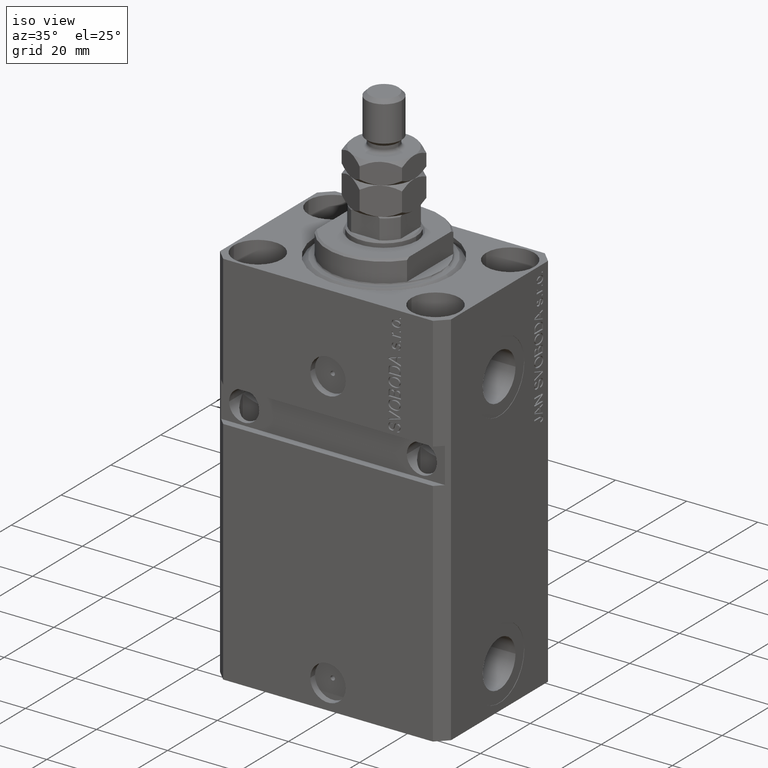
[diagram: clean part render]
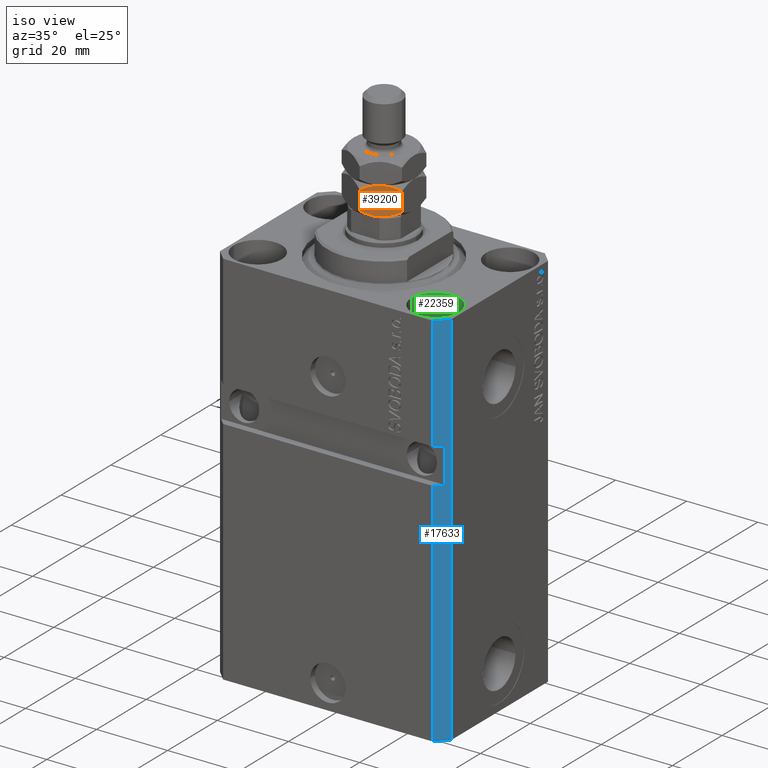
[diagram: same view with three faces highlighted in distinct colors, each labeled with its STEP entity id]
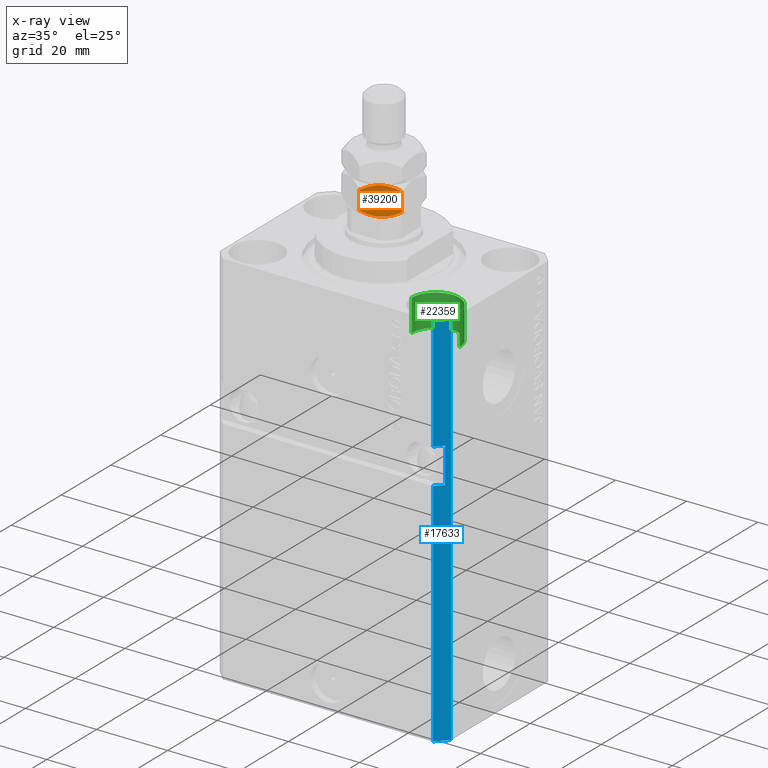
[diagram: x-ray of the same camera — body ghosted, the three highlighted faces saturated]
A machine part, iso view with three faces highlighted in distinct colors.
The next image is the same camera in x-ray (body ghosted, the three faces saturated) — at least one of them is partly hidden behind the body in this view.
Their STEP definitions:

[orange] entity #39200 — the highlighted planar face has unit normal (-0.5, 0.866, 0).
#1298 = CARTESIAN_POINT ( 'NONE',  ( 4.622229978650556070, -7.146308853793384763, -1.291725244562808017E-15 ) ) ;
#1618 = EDGE_CURVE ( 'NONE', #36390, #26012, #25965, .T. ) ;
#2045 = B_SPLINE_CURVE_WITH_KNOTS ( 'NONE', 3,
 ( #38709, #6479, #10927, #17770, #46420, #42907 ),
 .UNSPECIFIED., .F., .F.,
 ( 4, 2, 4 ),
 ( 0.005087299150080232951, 0.007613005268011856577, 0.01013871138594348020 ),
 .UNSPECIFIED. ) ;
#2893 = FACE_OUTER_BOUND ( 'NONE', #39038, .T. ) ;
#3130 = CARTESIAN_POINT ( 'NONE',  ( -9.757819552369539906E-16, -9.814954576223637872, 8.000000000000000000 ) ) ;
#4316 = CARTESIAN_POINT ( 'NONE',  ( -1.010883460254179403E-15, -9.814954576223637872, 1.314954576223630323 ) ) ;
#4545 = AXIS2_PLACEMENT_3D ( 'NONE', #3130, #10202, #24563 ) ;
#4969 = CARTESIAN_POINT ( 'NONE',  ( 8.500000000000001776, -4.907477288111817160, 1.314954576223629878 ) ) ;
#5067 = CARTESIAN_POINT ( 'NONE',  ( 2.784079206026082609, -8.207565697179241226, 0.1305202873832139177 ) ) ;
#5540 = CARTESIAN_POINT ( 'NONE',  ( 6.092930036521920556, -6.297199779484154547, 0.2536240893246553552 ) ) ;
#5758 = ORIENTED_EDGE ( 'NONE', *, *, #16312, .F. ) ;
#6380 = ORIENTED_EDGE ( 'NONE', *, *, #25495, .T. ) ;
#6479 = CARTESIAN_POINT ( 'NONE',  ( 4.989245346831671313, -6.934412432177284202, 8.000000000000001776 ) ) ;
#7532 = B_SPLINE_CURVE_WITH_KNOTS ( 'NONE', 3,
 ( #45032, #37780, #9070, #5540, #8380, #19904, #1298, #9303 ),
 .UNSPECIFIED., .F., .F.,
 ( 4, 2, 2, 4 ),
 ( 2.544313836654547822E-07, 0.002543776790731953636, 0.003815537970406099148, 0.005087299150080244227 ),
 .UNSPECIFIED. ) ;
#8250 = VERTEX_POINT ( 'NONE', #28077 ) ;
#8380 = CARTESIAN_POINT ( 'NONE',  ( 5.733718739115172269, -6.504590518737895621, 0.1608217079418340634 ) ) ;
#8467 = CARTESIAN_POINT ( 'NONE',  ( 3.499970675361007366, -7.794245564648166535, 7.966263250401633300 ) ) ;
#9062 = CARTESIAN_POINT ( 'NONE',  ( 0.6656893889372494932, -9.430618628324040742, 0.9306186283239298307 ) ) ;
#9070 = CARTESIAN_POINT ( 'NONE',  ( 7.151994807070145121, -5.685748449118888104, 0.6032092124201289263 ) ) ;
#9303 = CARTESIAN_POINT ( 'NONE',  ( 4.249999999999997335, -7.361215932167732845, 0.000000000000000000 ) ) ;
#9359 = ORIENTED_EDGE ( 'NONE', *, *, #1618, .F. ) ;
#9975 = B_SPLINE_CURVE_WITH_KNOTS ( 'NONE', 3,
 ( #15915, #30267, #5067, #19429, #9062, #15680 ),
 .UNSPECIFIED., .F., .F.,
 ( 4, 2, 4 ),
 ( 0.005087299150080244227, 0.007613005268011863516, 0.01013871138594348367 ),
 .UNSPECIFIED. ) ;
#10202 = DIRECTION ( 'NONE',  ( -0.4999999999999995559, 0.8660254037844389297, 0.000000000000000000 ) ) ;
#10927 = CARTESIAN_POINT ( 'NONE',  ( 5.715920793973914726, -6.514866167156222687, 7.869479712616787026 ) ) ;
#11613 = CARTESIAN_POINT ( 'NONE',  ( 8.500000000000001776, -4.907477288111821601, 8.000000000000000000 ) ) ;
#11764 = CARTESIAN_POINT ( 'NONE',  ( 4.249999999999994671, -7.361215932167728404, 8.000000000000000000 ) ) ;
#14598 = CARTESIAN_POINT ( 'NONE',  ( 2.407069963478076335, -8.425232084851307590, 7.746375910675348031 ) ) ;
#15680 = CARTESIAN_POINT ( 'NONE',  ( -1.010883460254179403E-15, -9.814954576223637872, 1.314954576223630323 ) ) ;
#15753 = DIRECTION ( 'NONE',  ( -0.000000000000000000, -0.000000000000000000, -1.000000000000000000 ) ) ;
#15915 = CARTESIAN_POINT ( 'NONE',  ( 4.249999999999997335, -7.361215932167732845, 0.000000000000000000 ) ) ;
#16312 = EDGE_CURVE ( 'NONE', #18157, #36390, #2045, .T. ) ;
#16412 = VERTEX_POINT ( 'NONE', #4316 ) ;
#17272 = PLANE ( 'NONE',  #4545 ) ;
#17655 = EDGE_CURVE ( 'NONE', #32414, #18157, #19985, .T. ) ;
#17770 = CARTESIAN_POINT ( 'NONE',  ( 7.149107353189445568, -5.687415521394182605, 7.399061587263878970 ) ) ;
#18157 = VERTEX_POINT ( 'NONE', #42920 ) ;
#18356 = CARTESIAN_POINT ( 'NONE',  ( 0.6664608216042839928, -9.430173241466070166, 7.069826758533944933 ) ) ;
#18802 = LINE ( 'NONE', #40890, #20990 ) ;
#19140 = DIRECTION ( 'NONE',  ( -0.000000000000000000, -0.000000000000000000, -1.000000000000000000 ) ) ;
#19429 = CARTESIAN_POINT ( 'NONE',  ( 1.350892646810552433, -9.035016342941277756, 0.6009384127361203642 ) ) ;
#19904 = CARTESIAN_POINT ( 'NONE',  ( 5.000029324638989081, -6.928186299687297378, 0.03373674959836757414 ) ) ;
#19985 = B_SPLINE_CURVE_WITH_KNOTS ( 'NONE', 3,
 ( #43955, #18356, #36240, #14598, #22826, #8467, #28946, #11764 ),
 .UNSPECIFIED., .F., .F.,
 ( 4, 2, 2, 4 ),
 ( 2.544313836662128767E-07, 0.002543776790731947998, 0.003815537970406090475, 0.005087299150080232951 ),
 .UNSPECIFIED. ) ;
#20990 = VECTOR ( 'NONE', #15753, 1000.000000000000000 ) ;
#22826 = CARTESIAN_POINT ( 'NONE',  ( 2.766281260884825066, -8.217841345597570069, 7.839178292058168296 ) ) ;
#24563 = DIRECTION ( 'NONE',  ( -0.8660254037844389297, -0.4999999999999995559, 0.000000000000000000 ) ) ;
#25495 = EDGE_CURVE ( 'NONE', #32414, #16412, #18802, .T. ) ;
#25965 = LINE ( 'NONE', #11613, #39776 ) ;
#26012 = VERTEX_POINT ( 'NONE', #4969 ) ;
#28077 = CARTESIAN_POINT ( 'NONE',  ( 4.249999999999997335, -7.361215932167732845, 0.000000000000000000 ) ) ;
#28946 = CARTESIAN_POINT ( 'NONE',  ( 3.877770021349439045, -7.576123010542081815, 8.000000000000003553 ) ) ;
#30267 = CARTESIAN_POINT ( 'NONE',  ( 3.510754653168322914, -7.788019432158174382, -1.295960409299079124E-15 ) ) ;
#32111 = ORIENTED_EDGE ( 'NONE', *, *, #17655, .F. ) ;
#32345 = CARTESIAN_POINT ( 'NONE',  ( 8.500000000000001776, -4.907477288111821601, 6.685045423776368345 ) ) ;
#32414 = VERTEX_POINT ( 'NONE', #36895 ) ;
#36240 = CARTESIAN_POINT ( 'NONE',  ( 1.348005192929855101, -9.036683415216574033, 7.396790787579876181 ) ) ;
#36390 = VERTEX_POINT ( 'NONE', #32345 ) ;
#36895 = CARTESIAN_POINT ( 'NONE',  ( -7.581970720220202129E-16, -9.814954576223637872, 6.685045423776371010 ) ) ;
#37780 = CARTESIAN_POINT ( 'NONE',  ( 7.833539178395718672, -5.292258622869395523, 0.9301732414660633941 ) ) ;
#38709 = CARTESIAN_POINT ( 'NONE',  ( 4.249999999999994671, -7.361215932167728404, 8.000000000000000000 ) ) ;
#39038 = EDGE_LOOP ( 'NONE', ( #45263, #9359, #5758, #32111, #6380, #39203 ) ) ;
#39200 = ADVANCED_FACE ( 'NONE', ( #2893 ), #17272, .F. ) ;
#39203 = ORIENTED_EDGE ( 'NONE', *, *, #43413, .F. ) ;
#39776 = VECTOR ( 'NONE', #19140, 1000.000000000000000 ) ;
#40890 = CARTESIAN_POINT ( 'NONE',  ( -9.757819552369539906E-16, -9.814954576223637872, 8.000000000000000000 ) ) ;
#42907 = CARTESIAN_POINT ( 'NONE',  ( 8.500000000000001776, -4.907477288111821601, 6.685045423776368345 ) ) ;
#42920 = CARTESIAN_POINT ( 'NONE',  ( 4.249999999999994671, -7.361215932167728404, 8.000000000000000000 ) ) ;
#43413 = EDGE_CURVE ( 'NONE', #8250, #16412, #9975, .T. ) ;
#43955 = CARTESIAN_POINT ( 'NONE',  ( -7.581970720220202129E-16, -9.814954576223637872, 6.685045423776371010 ) ) ;
#44369 = EDGE_CURVE ( 'NONE', #26012, #8250, #7532, .T. ) ;
#45032 = CARTESIAN_POINT ( 'NONE',  ( 8.500000000000001776, -4.907477288111817160, 1.314954576223629878 ) ) ;
#45263 = ORIENTED_EDGE ( 'NONE', *, *, #44369, .F. ) ;
#46420 = CARTESIAN_POINT ( 'NONE',  ( 7.834310611062749174, -5.291813236011422283, 7.069381371676068504 ) ) ;

[blue] entity #17633 — the highlighted planar face has unit normal (0.7071, -0.7071, 0).
#497 = LINE ( 'NONE', #14891, #20865 ) ;
#1564 = ORIENTED_EDGE ( 'NONE', *, *, #40134, .F. ) ;
#2577 = ORIENTED_EDGE ( 'NONE', *, *, #23808, .F. ) ;
#4188 = ORIENTED_EDGE ( 'NONE', *, *, #41185, .T. ) ;
#4453 = CARTESIAN_POINT ( 'NONE',  ( 29.49999999999650413, -22.49999999999949196, -107.0000000000000000 ) ) ;
#5436 = CARTESIAN_POINT ( 'NONE',  ( 29.49999999999650413, -22.49999999999949196, 0.000000000000000000 ) ) ;
#7124 = CARTESIAN_POINT ( 'NONE',  ( 29.49999999999650768, -22.49999999999948841, -32.00000000000001421 ) ) ;
#7412 = CARTESIAN_POINT ( 'NONE',  ( 31.49999999999651124, -20.49999999999949551, -107.0000000000000000 ) ) ;
#8296 = CARTESIAN_POINT ( 'NONE',  ( 29.49999999999650058, -22.49999999999949551, -41.99999999999999289 ) ) ;
#8495 = ORIENTED_EDGE ( 'NONE', *, *, #24961, .F. ) ;
#8512 = EDGE_CURVE ( 'NONE', #17751, #14821, #37430, .T. ) ;
#8814 = VERTEX_POINT ( 'NONE', #29164 ) ;
#8821 = VERTEX_POINT ( 'NONE', #12448 ) ;
#10515 = ORIENTED_EDGE ( 'NONE', *, *, #8512, .F. ) ;
#11831 = LINE ( 'NONE', #8296, #21649 ) ;
#12448 = CARTESIAN_POINT ( 'NONE',  ( 29.49999999999650058, -22.49999999999949196, -41.99999999999998579 ) ) ;
#13280 = DIRECTION ( 'NONE',  ( 0.000000000000000000, 0.000000000000000000, 1.000000000000000000 ) ) ;
#13350 = VERTEX_POINT ( 'NONE', #21634 ) ;
#13426 = DIRECTION ( 'NONE',  ( 0.7071067811865483499, 0.7071067811865466846, 0.000000000000000000 ) ) ;
#13479 = DIRECTION ( 'NONE',  ( 0.000000000000000000, 0.000000000000000000, 1.000000000000000000 ) ) ;
#13519 = LINE ( 'NONE', #7124, #36862 ) ;
#14821 = VERTEX_POINT ( 'NONE', #32131 ) ;
#14830 = DIRECTION ( 'NONE',  ( 0.7071067811865466846, -0.7071067811865483499, 0.000000000000000000 ) ) ;
#14891 = CARTESIAN_POINT ( 'NONE',  ( 29.49999999999650413, -22.49999999999949196, -107.0000000000000000 ) ) ;
#15441 = DIRECTION ( 'NONE',  ( 0.000000000000000000, 0.000000000000000000, -1.000000000000000000 ) ) ;
#16004 = EDGE_CURVE ( 'NONE', #45773, #14821, #26940, .T. ) ;
#17633 = ADVANCED_FACE ( 'NONE', ( #46092 ), #29417, .T. ) ;
#17751 = VERTEX_POINT ( 'NONE', #44871 ) ;
#17784 = DIRECTION ( 'NONE',  ( 0.7071067811865483499, 0.7071067811865466846, 0.000000000000000000 ) ) ;
#18489 = EDGE_CURVE ( 'NONE', #8814, #17751, #497, .T. ) ;
#20865 = VECTOR ( 'NONE', #29240, 1000.000000000000000 ) ;
#21429 = VECTOR ( 'NONE', #13426, 1000.000000000000000 ) ;
#21487 = DIRECTION ( 'NONE',  ( -0.7071067811865483499, -0.7071067811865466846, 7.548521435980509068E-17 ) ) ;
#21634 = CARTESIAN_POINT ( 'NONE',  ( 31.49999999999650413, -20.49999999999949196, -41.99999999999998579 ) ) ;
#21649 = VECTOR ( 'NONE', #39808, 1000.000000000000000 ) ;
#23808 = EDGE_CURVE ( 'NONE', #8821, #13350, #11831, .T. ) ;
#24961 = EDGE_CURVE ( 'NONE', #43878, #8821, #45661, .T. ) ;
#25288 = ORIENTED_EDGE ( 'NONE', *, *, #30448, .T. ) ;
#26082 = ORIENTED_EDGE ( 'NONE', *, *, #16004, .T. ) ;
#26445 = CARTESIAN_POINT ( 'NONE',  ( 31.49999999999651124, -20.49999999999949196, -32.00000000000000711 ) ) ;
#26876 = AXIS2_PLACEMENT_3D ( 'NONE', #4453, #14830, #43259 ) ;
#26940 = LINE ( 'NONE', #34929, #27584 ) ;
#27584 = VECTOR ( 'NONE', #13280, 1000.000000000000000 ) ;
#28834 = LINE ( 'NONE', #32371, #42159 ) ;
#29164 = CARTESIAN_POINT ( 'NONE',  ( 29.49999999999650413, -22.49999999999949196, -32.00000000000000711 ) ) ;
#29240 = DIRECTION ( 'NONE',  ( 0.000000000000000000, 0.000000000000000000, 1.000000000000000000 ) ) ;
#29241 = EDGE_LOOP ( 'NONE', ( #2577, #8495, #25288, #26082, #10515, #31066, #1564, #4188 ) ) ;
#29417 = PLANE ( 'NONE',  #26876 ) ;
#29469 = CARTESIAN_POINT ( 'NONE',  ( 32.49999999999651124, -19.49999999999949196, -107.0000000000000000 ) ) ;
#30448 = EDGE_CURVE ( 'NONE', #43878, #45773, #28834, .T. ) ;
#31066 = ORIENTED_EDGE ( 'NONE', *, *, #18489, .F. ) ;
#31131 = CARTESIAN_POINT ( 'NONE',  ( 29.49999999999650413, -22.49999999999949196, -107.0000000000000000 ) ) ;
#32131 = CARTESIAN_POINT ( 'NONE',  ( 32.49999999999651124, -19.49999999999949196, 0.000000000000000000 ) ) ;
#32371 = CARTESIAN_POINT ( 'NONE',  ( 29.49999999999650413, -22.49999999999949196, -107.0000000000000000 ) ) ;
#34891 = CARTESIAN_POINT ( 'NONE',  ( 29.49999999999650413, -22.49999999999949196, -107.0000000000000000 ) ) ;
#34929 = CARTESIAN_POINT ( 'NONE',  ( 32.49999999999651124, -19.49999999999949196, -107.0000000000000000 ) ) ;
#36862 = VECTOR ( 'NONE', #21487, 1000.000000000000000 ) ;
#37430 = LINE ( 'NONE', #5436, #21429 ) ;
#39635 = LINE ( 'NONE', #7412, #42910 ) ;
#39699 = VECTOR ( 'NONE', #13479, 1000.000000000000000 ) ;
#39808 = DIRECTION ( 'NONE',  ( 0.7071067811865483499, 0.7071067811865466846, 7.548521435980509068E-17 ) ) ;
#40134 = EDGE_CURVE ( 'NONE', #42369, #8814, #13519, .T. ) ;
#41185 = EDGE_CURVE ( 'NONE', #42369, #13350, #39635, .T. ) ;
#42159 = VECTOR ( 'NONE', #17784, 1000.000000000000000 ) ;
#42369 = VERTEX_POINT ( 'NONE', #26445 ) ;
#42910 = VECTOR ( 'NONE', #15441, 1000.000000000000000 ) ;
#43259 = DIRECTION ( 'NONE',  ( 0.7071067811865483499, 0.7071067811865466846, 0.000000000000000000 ) ) ;
#43878 = VERTEX_POINT ( 'NONE', #34891 ) ;
#44871 = CARTESIAN_POINT ( 'NONE',  ( 29.49999999999650413, -22.49999999999949196, 0.000000000000000000 ) ) ;
#45661 = LINE ( 'NONE', #31131, #39699 ) ;
#45773 = VERTEX_POINT ( 'NONE', #29469 ) ;
#46092 = FACE_OUTER_BOUND ( 'NONE', #29241, .T. ) ;

[green] entity #22359 — the highlighted cylindrical surface (edge-blend (fillet) strip) has radius 6.75 mm, axis along (0, 0, 1).
#10 = ORIENTED_EDGE ( 'NONE', *, *, #32581, .T. ) ;
#1377 = ORIENTED_EDGE ( 'NONE', *, *, #40256, .F. ) ;
#1454 = AXIS2_PLACEMENT_3D ( 'NONE', #5892, #6363, #10992 ) ;
#2310 = CARTESIAN_POINT ( 'NONE',  ( 31.74999999997746869, -15.00000000000000000, -9.000000000000000000 ) ) ;
#2822 = CYLINDRICAL_SURFACE ( 'NONE', #1454, 6.749999999977465137 ) ;
#3862 = DIRECTION ( 'NONE',  ( 1.000000000000000000, 0.000000000000000000, 0.000000000000000000 ) ) ;
#5419 = EDGE_CURVE ( 'NONE', #30902, #12302, #34570, .T. ) ;
#5679 = CARTESIAN_POINT ( 'NONE',  ( 31.74999999997746869, -15.00000000000000000, -9.000000000000000000 ) ) ;
#5892 = CARTESIAN_POINT ( 'NONE',  ( 25.00000000000000355, -15.00000000000000000, -9.000000000000000000 ) ) ;
#6363 = DIRECTION ( 'NONE',  ( -0.000000000000000000, -0.000000000000000000, 1.000000000000000000 ) ) ;
#8763 = DIRECTION ( 'NONE',  ( -0.000000000000000000, -0.000000000000000000, 1.000000000000000000 ) ) ;
#9288 = EDGE_LOOP ( 'NONE', ( #1377, #14983, #33964, #10 ) ) ;
#10194 = EDGE_CURVE ( 'NONE', #30902, #43989, #19894, .T. ) ;
#10992 = DIRECTION ( 'NONE',  ( 1.000000000000000000, 0.000000000000000000, 0.000000000000000000 ) ) ;
#12302 = VERTEX_POINT ( 'NONE', #22339 ) ;
#14983 = ORIENTED_EDGE ( 'NONE', *, *, #10194, .F. ) ;
#15427 = CARTESIAN_POINT ( 'NONE',  ( 25.00000000000000355, -15.00000000000000000, -9.000000000000000000 ) ) ;
#16691 = AXIS2_PLACEMENT_3D ( 'NONE', #39199, #18031, #42941 ) ;
#18031 = DIRECTION ( 'NONE',  ( 0.000000000000000000, 0.000000000000000000, 1.000000000000000000 ) ) ;
#18061 = FACE_OUTER_BOUND ( 'NONE', #9288, .T. ) ;
#19894 = CIRCLE ( 'NONE', #30415, 6.749999999977465137 ) ;
#21760 = DIRECTION ( 'NONE',  ( 0.000000000000000000, 0.000000000000000000, 1.000000000000000000 ) ) ;
#22339 = CARTESIAN_POINT ( 'NONE',  ( 31.74999999997746869, -15.00000000000000000, 0.000000000000000000 ) ) ;
#22359 = ADVANCED_FACE ( 'NONE', ( #18061 ), #2822, .F. ) ;
#22710 = CIRCLE ( 'NONE', #16691, 6.749999999977465137 ) ;
#22867 = VECTOR ( 'NONE', #24446, 1000.000000000000000 ) ;
#24446 = DIRECTION ( 'NONE',  ( -0.000000000000000000, -0.000000000000000000, 1.000000000000000000 ) ) ;
#25722 = CARTESIAN_POINT ( 'NONE',  ( 18.25000000002253842, -15.00000000000000000, 0.000000000000000000 ) ) ;
#27557 = VERTEX_POINT ( 'NONE', #25722 ) ;
#30200 = LINE ( 'NONE', #41438, #34618 ) ;
#30415 = AXIS2_PLACEMENT_3D ( 'NONE', #15427, #21760, #3862 ) ;
#30902 = VERTEX_POINT ( 'NONE', #5679 ) ;
#32581 = EDGE_CURVE ( 'NONE', #12302, #27557, #22710, .T. ) ;
#33964 = ORIENTED_EDGE ( 'NONE', *, *, #5419, .T. ) ;
#34570 = LINE ( 'NONE', #2310, #22867 ) ;
#34618 = VECTOR ( 'NONE', #8763, 1000.000000000000000 ) ;
#36031 = CARTESIAN_POINT ( 'NONE',  ( 18.25000000002253842, -15.00000000000000000, -9.000000000000000000 ) ) ;
#39199 = CARTESIAN_POINT ( 'NONE',  ( 25.00000000000000355, -15.00000000000000000, 0.000000000000000000 ) ) ;
#40256 = EDGE_CURVE ( 'NONE', #43989, #27557, #30200, .T. ) ;
#41438 = CARTESIAN_POINT ( 'NONE',  ( 18.25000000002253842, -15.00000000000000000, -9.000000000000000000 ) ) ;
#42941 = DIRECTION ( 'NONE',  ( 1.000000000000000000, 0.000000000000000000, 0.000000000000000000 ) ) ;
#43989 = VERTEX_POINT ( 'NONE', #36031 ) ;